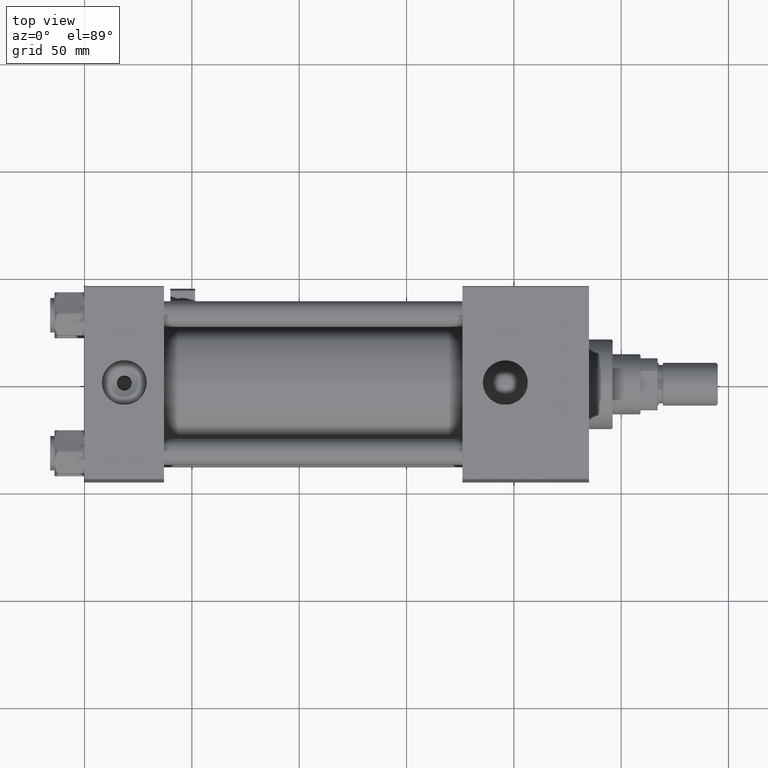
[diagram: clean part render]
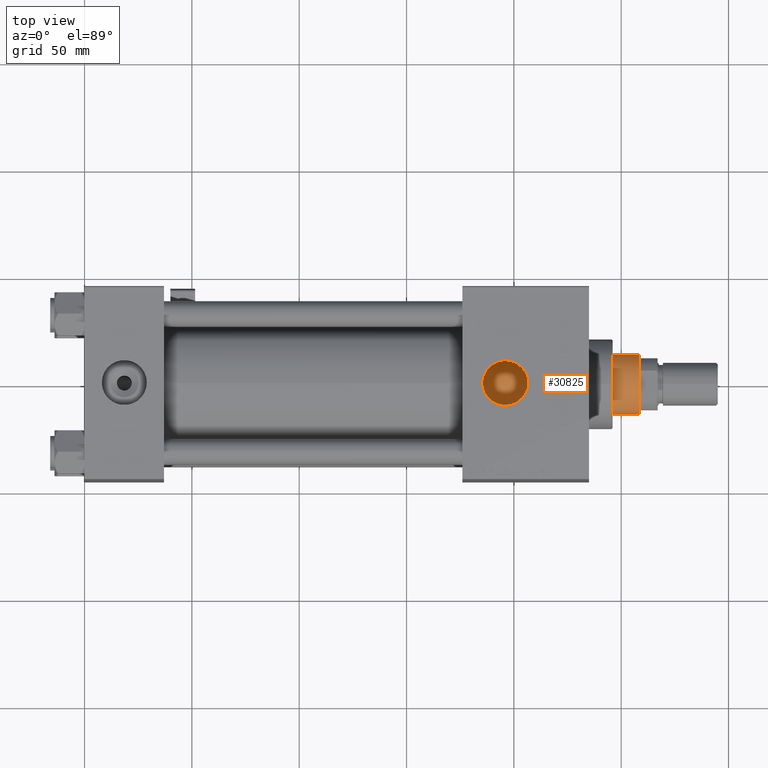
[diagram: same view with one face highlighted and labeled with its STEP entity id]
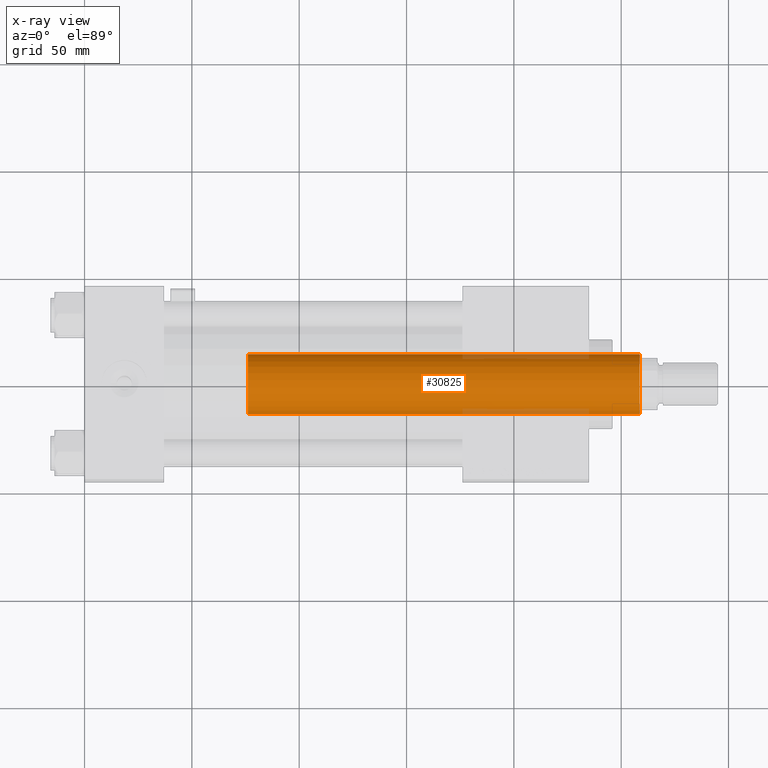
[diagram: x-ray of the same camera — body ghosted, the highlighted face saturated]
A machine part, top view. The second image highlights one B-rep face of the part: STEP entity #30825.
The next image is the same camera in x-ray: the body ghosted, the highlighted face saturated — about 5% of this face is hidden behind the body in this view.
In plain terms, the highlighted cylindrical surface (edge-blend (fillet) strip) has radius 14 mm, axis along (-1, 0, 0).
Its self-contained STEP definition (entity closure, byte-faithful):
#2992 = EDGE_CURVE ( 'NONE', #49898, #53821, #34388, .T. ) ;
#4802 = CARTESIAN_POINT ( 'NONE',  ( -14.00000000000000178, 0.000000000000000000, 39.00000000000000000 ) ) ;
#5488 = DIRECTION ( 'NONE',  ( -0.000000000000000000, -0.000000000000000000, -1.000000000000000000 ) ) ;
#6035 = DIRECTION ( 'NONE',  ( 0.000000000000000000, 0.000000000000000000, 1.000000000000000000 ) ) ;
#10450 = CARTESIAN_POINT ( 'NONE',  ( 0.000000000000000000, 0.000000000000000000, 39.00000000000000000 ) ) ;
#12156 = EDGE_CURVE ( 'NONE', #49898, #26406, #25378, .T. ) ;
#12275 = EDGE_LOOP ( 'NONE', ( #52038, #16378, #26910, #44063 ) ) ;
#12957 = CARTESIAN_POINT ( 'NONE',  ( 14.00000000000000178, 1.714505518806294835E-15, 221.5000000000000568 ) ) ;
#13772 = CYLINDRICAL_SURFACE ( 'NONE', #35538, 14.00000000000000178 ) ;
#14316 = DIRECTION ( 'NONE',  ( -1.000000000000000000, 0.000000000000000000, 0.000000000000000000 ) ) ;
#15131 = DIRECTION ( 'NONE',  ( 1.000000000000000000, 0.000000000000000000, 0.000000000000000000 ) ) ;
#15216 = LINE ( 'NONE', #27065, #20170 ) ;
#16378 = ORIENTED_EDGE ( 'NONE', *, *, #12156, .T. ) ;
#17688 = CARTESIAN_POINT ( 'NONE',  ( 14.00000000000000178, 1.714505518806294835E-15, 39.00000000000000000 ) ) ;
#18968 = CIRCLE ( 'NONE', #45397, 14.00000000000000178 ) ;
#20170 = VECTOR ( 'NONE', #35622, 1000.000000000000000 ) ;
#22243 = CARTESIAN_POINT ( 'NONE',  ( 14.00000000000000178, 1.714505518806294835E-15, 222.0000000000000000 ) ) ;
#22786 = CARTESIAN_POINT ( 'NONE',  ( -14.00000000000000178, 0.000000000000000000, 221.5000000000000568 ) ) ;
#24333 = VERTEX_POINT ( 'NONE', #4802 ) ;
#25378 = CIRCLE ( 'NONE', #43006, 14.00000000000000178 ) ;
#26406 = VERTEX_POINT ( 'NONE', #22786 ) ;
#26910 = ORIENTED_EDGE ( 'NONE', *, *, #38233, .T. ) ;
#27065 = CARTESIAN_POINT ( 'NONE',  ( -14.00000000000000178, 0.000000000000000000, 222.0000000000000000 ) ) ;
#30825 = ADVANCED_FACE ( 'NONE', ( #34992 ), #13772, .T. ) ;
#34366 = EDGE_CURVE ( 'NONE', #24333, #53821, #18968, .T. ) ;
#34388 = LINE ( 'NONE', #22243, #52700 ) ;
#34992 = FACE_OUTER_BOUND ( 'NONE', #12275, .T. ) ;
#35538 = AXIS2_PLACEMENT_3D ( 'NONE', #39385, #5488, #14316 ) ;
#35622 = DIRECTION ( 'NONE',  ( -0.000000000000000000, -0.000000000000000000, -1.000000000000000000 ) ) ;
#38233 = EDGE_CURVE ( 'NONE', #26406, #24333, #15216, .T. ) ;
#39385 = CARTESIAN_POINT ( 'NONE',  ( 0.000000000000000000, 0.000000000000000000, 222.0000000000000000 ) ) ;
#43006 = AXIS2_PLACEMENT_3D ( 'NONE', #49739, #54433, #50559 ) ;
#44063 = ORIENTED_EDGE ( 'NONE', *, *, #34366, .T. ) ;
#45397 = AXIS2_PLACEMENT_3D ( 'NONE', #10450, #6035, #15131 ) ;
#49739 = CARTESIAN_POINT ( 'NONE',  ( 0.000000000000000000, 0.000000000000000000, 221.5000000000000568 ) ) ;
#49898 = VERTEX_POINT ( 'NONE', #12957 ) ;
#50559 = DIRECTION ( 'NONE',  ( 1.000000000000000000, 0.000000000000000000, 0.000000000000000000 ) ) ;
#51750 = DIRECTION ( 'NONE',  ( -0.000000000000000000, -0.000000000000000000, -1.000000000000000000 ) ) ;
#52038 = ORIENTED_EDGE ( 'NONE', *, *, #2992, .F. ) ;
#52700 = VECTOR ( 'NONE', #51750, 1000.000000000000000 ) ;
#53821 = VERTEX_POINT ( 'NONE', #17688 ) ;
#54433 = DIRECTION ( 'NONE',  ( 0.000000000000000000, 0.000000000000000000, -1.000000000000000000 ) ) ;